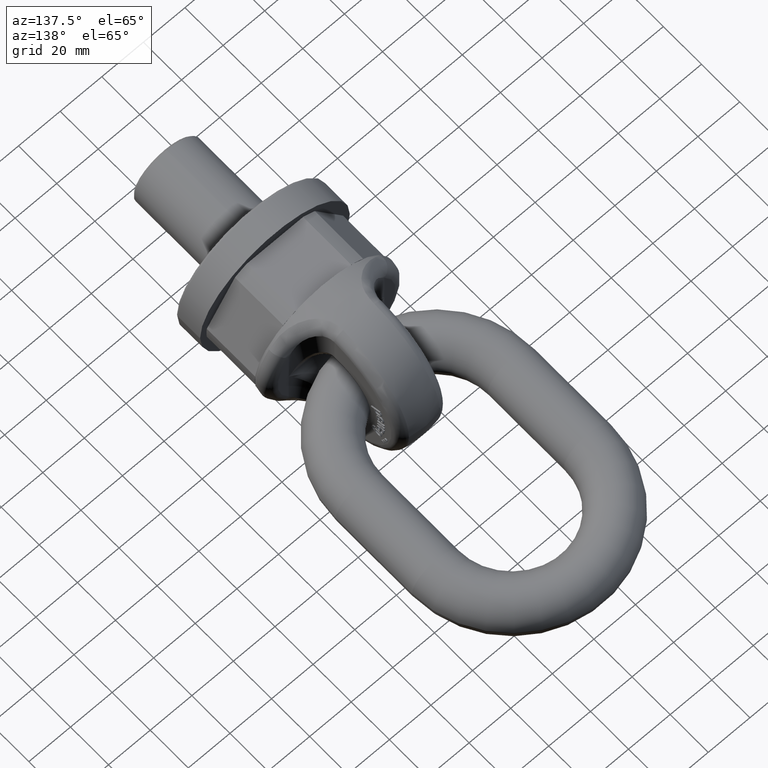
[diagram: clean part render]
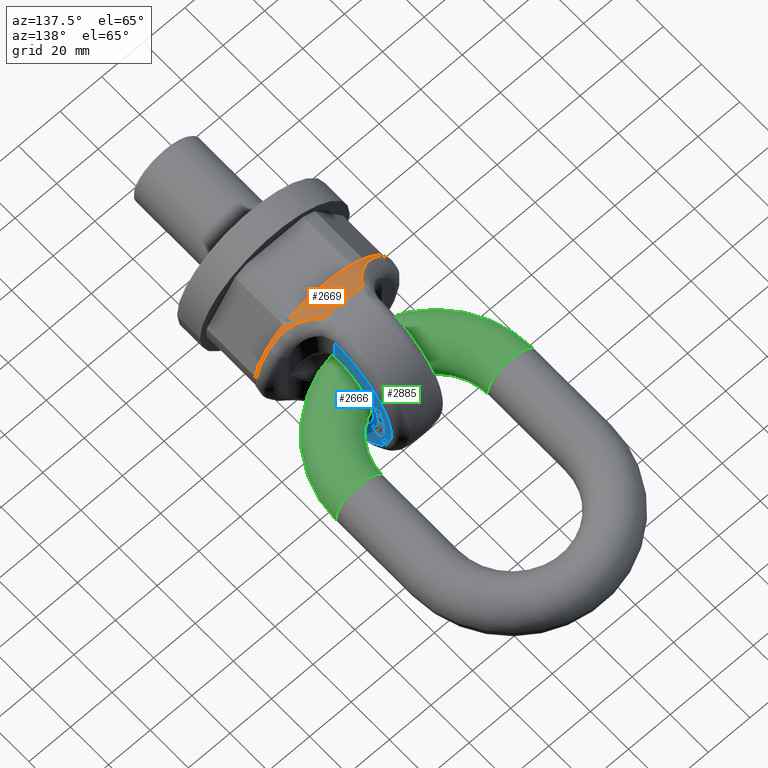
[diagram: same view with three faces highlighted in distinct colors, each labeled with its STEP entity id]
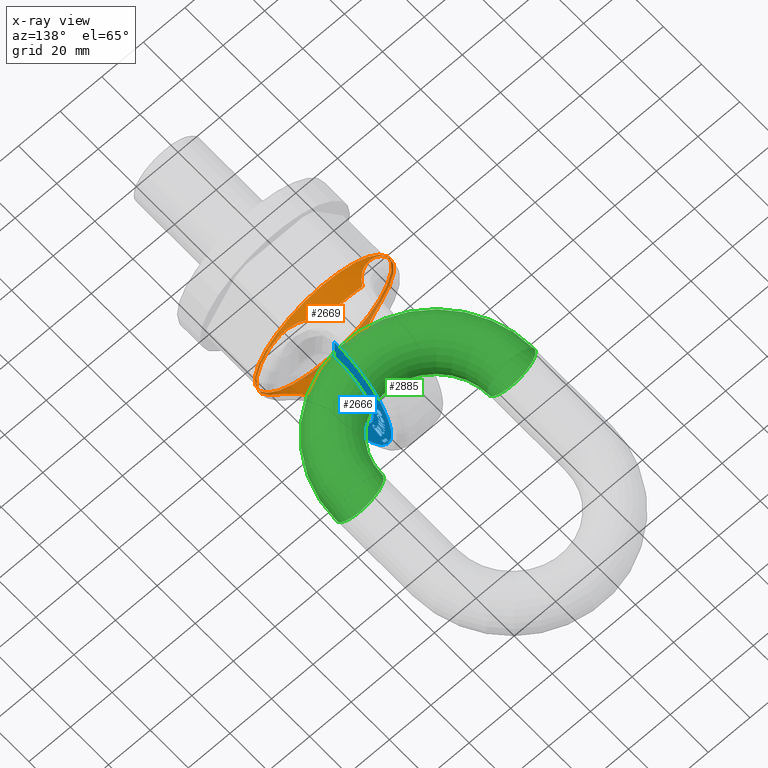
[diagram: x-ray of the same camera — body ghosted, the three highlighted faces saturated]
A machine part, auxiliary view with three faces highlighted in distinct colors.
The next image is the same camera in x-ray (body ghosted, the three faces saturated) — at least one of them is partly hidden behind the body in this view.
Their STEP definitions:

[orange] entity #2669 — the highlighted conical surface has half-angle 12.365 deg.
#357=B_SPLINE_CURVE_WITH_KNOTS('',3,(#7016,#7017,#7018,#7019,#7020,#7021),
 .UNSPECIFIED.,.F.,.F.,(4,2,4),(0.,0.5,1.),.UNSPECIFIED.);
#358=B_SPLINE_CURVE_WITH_KNOTS('',3,(#7026,#7027,#7028,#7029,#7030,#7031,
#7032,#7033),.UNSPECIFIED.,.F.,.F.,(4,2,2,4),(0.,0.5,0.75,1.),
 .UNSPECIFIED.);
#359=B_SPLINE_CURVE_WITH_KNOTS('',3,(#7037,#7038,#7039,#7040,#7041,#7042),
 .UNSPECIFIED.,.F.,.F.,(4,2,4),(0.,0.5,1.),.UNSPECIFIED.);
#360=B_SPLINE_CURVE_WITH_KNOTS('',3,(#7046,#7047,#7048,#7049,#7050,#7051,
#7052,#7053),.UNSPECIFIED.,.F.,.F.,(4,2,2,4),(0.,0.5,0.75,1.),
 .UNSPECIFIED.);
#1795=CONICAL_SURFACE('',#5657,32.9089653438087,12.3645591090466);
#2669=ADVANCED_FACE('',(#3016,#3017),#1795,.T.);
#3016=FACE_BOUND('',#3104,.T.);
#3017=FACE_BOUND('',#3105,.T.);
#3104=EDGE_LOOP('',(#3521));
#3105=EDGE_LOOP('',(#3522,#3523,#3524,#3525,#3526,#3527,#3528,#3529));
#3521=ORIENTED_EDGE('',*,*,#5066,.F.);
#3522=ORIENTED_EDGE('',*,*,#5067,.T.);
#3523=ORIENTED_EDGE('',*,*,#5068,.T.);
#3524=ORIENTED_EDGE('',*,*,#5069,.T.);
#3525=ORIENTED_EDGE('',*,*,#5070,.T.);
#3526=ORIENTED_EDGE('',*,*,#5071,.T.);
#3527=ORIENTED_EDGE('',*,*,#5072,.T.);
#3528=ORIENTED_EDGE('',*,*,#5073,.T.);
#3529=ORIENTED_EDGE('',*,*,#5074,.T.);
#4653=VERTEX_POINT('',#7015);
#4654=VERTEX_POINT('',#7022);
#4655=VERTEX_POINT('',#7023);
#4656=VERTEX_POINT('',#7025);
#4657=VERTEX_POINT('',#7034);
#4658=VERTEX_POINT('',#7036);
#4659=VERTEX_POINT('',#7043);
#4660=VERTEX_POINT('',#7045);
#4661=VERTEX_POINT('',#7054);
#5066=EDGE_CURVE('',#4653,#4653,#5561,.T.);
#5067=EDGE_CURVE('',#4654,#4655,#357,.T.);
#5068=EDGE_CURVE('',#4655,#4656,#5562,.T.);
#5069=EDGE_CURVE('',#4656,#4657,#358,.T.);
#5070=EDGE_CURVE('',#4657,#4658,#5563,.T.);
#5071=EDGE_CURVE('',#4658,#4659,#359,.T.);
#5072=EDGE_CURVE('',#4659,#4660,#5564,.T.);
#5073=EDGE_CURVE('',#4660,#4661,#360,.T.);
#5074=EDGE_CURVE('',#4661,#4654,#5565,.T.);
#5561=CIRCLE('',#5652,32.9089653438087);
#5562=CIRCLE('',#5653,35.1649770557389);
#5563=CIRCLE('',#5654,33.1126923608536);
#5564=CIRCLE('',#5655,35.1649770557389);
#5565=CIRCLE('',#5656,33.1126923608536);
#5652=AXIS2_PLACEMENT_3D('',#7014,#5967,#5968);
#5653=AXIS2_PLACEMENT_3D('',#7024,#5969,#5970);
#5654=AXIS2_PLACEMENT_3D('',#7035,#5971,#5972);
#5655=AXIS2_PLACEMENT_3D('',#7044,#5973,#5974);
#5656=AXIS2_PLACEMENT_3D('',#7055,#5975,#5976);
#5657=AXIS2_PLACEMENT_3D('',#7056,#5977,#5978);
#5967=DIRECTION('',(0.,-1.,0.));
#5968=DIRECTION('',(0.,0.,-1.));
#5969=DIRECTION('',(0.,-1.,0.));
#5970=DIRECTION('',(0.,0.,-1.));
#5971=DIRECTION('',(0.,-1.,0.));
#5972=DIRECTION('',(0.,0.,-1.));
#5973=DIRECTION('',(0.,-1.,0.));
#5974=DIRECTION('',(0.,0.,-1.));
#5975=DIRECTION('',(0.,-1.,0.));
#5976=DIRECTION('',(-2.34291072916505E-15,0.,1.));
#5977=DIRECTION('',(0.,1.,0.));
#5978=DIRECTION('',(0.,1.37608289502775E-16,1.));
#7014=CARTESIAN_POINT('',(0.,38.,0.));
#7015=CARTESIAN_POINT('',(0.,38.,-32.9089653438087));
#7016=CARTESIAN_POINT('',(-26.9793789246754,38.9293442225551,-19.1980079233058));
#7017=CARTESIAN_POINT('',(-24.4615994059767,38.9293442225551,-22.7362983519338));
#7018=CARTESIAN_POINT('',(-21.3056991008732,39.3443178789869,-25.7919690789317));
#7019=CARTESIAN_POINT('',(-14.7601741336095,42.2178728566048,-30.7168430122548));
#7020=CARTESIAN_POINT('',(-11.4740973738557,44.6917908879162,-32.488631803824));
#7021=CARTESIAN_POINT('',(-9.43421952201463,48.2912784023965,-33.8758190062038));
#7022=CARTESIAN_POINT('',(-26.9793789246754,38.9293442225551,-19.1980079233058));
#7023=CARTESIAN_POINT('',(-9.43421952201467,48.2912784023966,-33.8758190062038));
#7024=CARTESIAN_POINT('',(0.,48.2912784023966,0.));
#7025=CARTESIAN_POINT('',(9.43421952201475,48.2912784023966,-33.8758190062038));
#7026=CARTESIAN_POINT('',(9.43421952201475,48.2912784023966,-33.8758190062038));
#7027=CARTESIAN_POINT('',(11.4780903010666,44.6847451270003,-32.4859164757851));
#7028=CARTESIAN_POINT('',(14.8099975668333,42.1909204605537,-30.6825569646057));
#7029=CARTESIAN_POINT('',(19.6824249761623,40.059522002684,-27.0117062959337));
#7030=CARTESIAN_POINT('',(21.3170205668032,39.5929177897052,-25.6168147898478));
#7031=CARTESIAN_POINT('',(24.324543164208,39.0327559955338,-22.6008911952197));
#7032=CARTESIAN_POINT('',(25.7194499894477,38.9293442225551,-20.9686135141289));
#7033=CARTESIAN_POINT('',(26.9793789246754,38.9293442225551,-19.1980079233058));
#7034=CARTESIAN_POINT('',(26.9793789246754,38.9293442225551,-19.1980079233058));
#7035=CARTESIAN_POINT('',(0.,38.9293442225551,0.));
#7036=CARTESIAN_POINT('',(26.9793789246754,38.9293442225551,19.1980079233058));
#7037=CARTESIAN_POINT('',(26.9793789246754,38.9293442225551,19.1980079233058));
#7038=CARTESIAN_POINT('',(24.4615994059768,38.9293442225551,22.7362983519338));
#7039=CARTESIAN_POINT('',(21.3056991008732,39.3443178789869,25.7919690789316));
#7040=CARTESIAN_POINT('',(14.7601741336096,42.2178728566048,30.7168430122548));
#7041=CARTESIAN_POINT('',(11.4740973738557,44.6917908879162,32.488631803824));
#7042=CARTESIAN_POINT('',(9.43421952201471,48.2912784023965,33.8758190062038));
#7043=CARTESIAN_POINT('',(9.43421952201475,48.2912784023966,33.8758190062038));
#7044=CARTESIAN_POINT('',(0.,48.2912784023966,0.));
#7045=CARTESIAN_POINT('',(-9.43421952201483,48.2912784023966,33.8758190062038));
#7046=CARTESIAN_POINT('',(-9.43421952201483,48.2912784023966,33.8758190062038));
#7047=CARTESIAN_POINT('',(-11.4780903010667,44.6847451270004,32.4859164757851));
#7048=CARTESIAN_POINT('',(-14.8099975668334,42.1909204605537,30.6825569646057));
#7049=CARTESIAN_POINT('',(-19.6824249761624,40.059522002684,27.0117062959337));
#7050=CARTESIAN_POINT('',(-21.3170205668033,39.5929177897052,25.6168147898477));
#7051=CARTESIAN_POINT('',(-24.324543164208,39.0327559955338,22.6008911952196));
#7052=CARTESIAN_POINT('',(-25.7194499894477,38.9293442225551,20.9686135141289));
#7053=CARTESIAN_POINT('',(-26.9793789246754,38.9293442225551,19.1980079233057));
#7054=CARTESIAN_POINT('',(-26.9793789246754,38.9293442225551,19.1980079233057));
#7055=CARTESIAN_POINT('',(0.,38.9293442225551,0.));
#7056=CARTESIAN_POINT('',(0.,38.,0.));

[blue] entity #2666 — the highlighted planar face has unit normal (1, -0, 0).
#316=B_SPLINE_CURVE_WITH_KNOTS('',3,(#6668,#6669,#6670,#6671,#6672,#6673),
 .UNSPECIFIED.,.F.,.F.,(4,2,4),(0.,0.670501232539034,1.),.UNSPECIFIED.);
#317=B_SPLINE_CURVE_WITH_KNOTS('',3,(#6675,#6676,#6677,#6678),
 .UNSPECIFIED.,.F.,.F.,(4,4),(0.,1.),.UNSPECIFIED.);
#318=B_SPLINE_CURVE_WITH_KNOTS('',3,(#6680,#6681,#6682,#6683,#6684,#6685),
 .UNSPECIFIED.,.F.,.F.,(4,2,4),(0.,0.470198675496688,1.),.UNSPECIFIED.);
#319=B_SPLINE_CURVE_WITH_KNOTS('',3,(#6687,#6688,#6689,#6690),
 .UNSPECIFIED.,.F.,.F.,(4,4),(0.,1.),.UNSPECIFIED.);
#320=B_SPLINE_CURVE_WITH_KNOTS('',3,(#6694,#6695,#6696,#6697),
 .UNSPECIFIED.,.F.,.F.,(4,4),(0.,1.),.UNSPECIFIED.);
#321=B_SPLINE_CURVE_WITH_KNOTS('',3,(#6699,#6700,#6701,#6702,#6703,#6704),
 .UNSPECIFIED.,.F.,.F.,(4,2,4),(0.,0.44419642857143,1.),.UNSPECIFIED.);
#322=B_SPLINE_CURVE_WITH_KNOTS('',3,(#6706,#6707,#6708,#6709,#6710,#6711),
 .UNSPECIFIED.,.F.,.F.,(4,2,4),(0.,0.5,1.),.UNSPECIFIED.);
#323=B_SPLINE_CURVE_WITH_KNOTS('',3,(#6713,#6714,#6715,#6716,#6717,#6718,
#6719,#6720,#6721,#6722,#6723,#6724,#6725,#6726),.UNSPECIFIED.,.F.,.F.,
(4,2,2,2,2,2,4),(0.,0.149537296690973,0.323681996634887,0.4978266965788,
0.672812675266407,0.847798653954011,1.),.UNSPECIFIED.);
#324=B_SPLINE_CURVE_WITH_KNOTS('',3,(#6731,#6732,#6733,#6734),
 .UNSPECIFIED.,.F.,.F.,(4,4),(0.,1.),.UNSPECIFIED.);
#325=B_SPLINE_CURVE_WITH_KNOTS('',3,(#6739,#6740,#6741,#6742),
 .UNSPECIFIED.,.F.,.F.,(4,4),(0.,1.),.UNSPECIFIED.);
#326=B_SPLINE_CURVE_WITH_KNOTS('',3,(#6744,#6745,#6746,#6747,#6748,#6749),
 .UNSPECIFIED.,.F.,.F.,(4,2,4),(0.,0.565320665083133,1.),.UNSPECIFIED.);
#327=B_SPLINE_CURVE_WITH_KNOTS('',3,(#6751,#6752,#6753,#6754),
 .UNSPECIFIED.,.F.,.F.,(4,4),(0.,1.),.UNSPECIFIED.);
#328=B_SPLINE_CURVE_WITH_KNOTS('',3,(#6758,#6759,#6760,#6761),
 .UNSPECIFIED.,.F.,.F.,(4,4),(0.,1.),.UNSPECIFIED.);
#329=B_SPLINE_CURVE_WITH_KNOTS('',3,(#6763,#6764,#6765,#6766,#6767,#6768),
 .UNSPECIFIED.,.F.,.F.,(4,2,4),(0.,0.429530201342281,1.),.UNSPECIFIED.);
#330=B_SPLINE_CURVE_WITH_KNOTS('',3,(#6770,#6771,#6772,#6773,#6774,#6775,
#6776,#6777,#6778,#6779,#6780,#6781),.UNSPECIFIED.,.F.,.F.,(4,2,2,2,2,4),
(0.,0.253866185683644,0.504362466247593,0.754858746811534,0.877429373405767,
1.),.UNSPECIFIED.);
#331=B_SPLINE_CURVE_WITH_KNOTS('',3,(#6805,#6806,#6807,#6808),
 .UNSPECIFIED.,.F.,.F.,(4,4),(0.,1.),.UNSPECIFIED.);
#332=B_SPLINE_CURVE_WITH_KNOTS('',3,(#6810,#6811,#6812,#6813),
 .UNSPECIFIED.,.F.,.F.,(4,4),(0.,1.),.UNSPECIFIED.);
#333=B_SPLINE_CURVE_WITH_KNOTS('',3,(#6835,#6836,#6837,#6838),
 .UNSPECIFIED.,.F.,.F.,(4,4),(0.,1.),.UNSPECIFIED.);
#334=B_SPLINE_CURVE_WITH_KNOTS('',3,(#6843,#6844,#6845,#6846),
 .UNSPECIFIED.,.F.,.F.,(4,4),(0.,1.),.UNSPECIFIED.);
#335=B_SPLINE_CURVE_WITH_KNOTS('',3,(#6851,#6852,#6853,#6854),
 .UNSPECIFIED.,.F.,.F.,(4,4),(0.,1.),.UNSPECIFIED.);
#336=B_SPLINE_CURVE_WITH_KNOTS('',3,(#6856,#6857,#6858,#6859,#6860,#6861,
#6862,#6863,#6864,#6865),.UNSPECIFIED.,.F.,.F.,(4,2,2,2,4),(0.,0.296954694318533,
0.533565653962711,0.771641518085909,1.),.UNSPECIFIED.);
#337=B_SPLINE_CURVE_WITH_KNOTS('',3,(#6867,#6868,#6869,#6870),
 .UNSPECIFIED.,.F.,.F.,(4,4),(0.,1.),.UNSPECIFIED.);
#338=B_SPLINE_CURVE_WITH_KNOTS('',3,(#6874,#6875,#6876,#6877),
 .UNSPECIFIED.,.F.,.F.,(4,4),(0.,1.),.UNSPECIFIED.);
#339=B_SPLINE_CURVE_WITH_KNOTS('',3,(#6879,#6880,#6881,#6882),
 .UNSPECIFIED.,.F.,.F.,(4,4),(0.,1.),.UNSPECIFIED.);
#340=B_SPLINE_CURVE_WITH_KNOTS('',3,(#6884,#6885,#6886,#6887),
 .UNSPECIFIED.,.F.,.F.,(4,4),(0.,1.),.UNSPECIFIED.);
#341=B_SPLINE_CURVE_WITH_KNOTS('',3,(#6889,#6890,#6891,#6892),
 .UNSPECIFIED.,.F.,.F.,(4,4),(0.,1.),.UNSPECIFIED.);
#342=B_SPLINE_CURVE_WITH_KNOTS('',3,(#6894,#6895,#6896,#6897,#6898,#6899),
 .UNSPECIFIED.,.F.,.F.,(4,2,4),(0.,0.440217391304352,1.),.UNSPECIFIED.);
#343=B_SPLINE_CURVE_WITH_KNOTS('',3,(#6901,#6902,#6903,#6904),
 .UNSPECIFIED.,.F.,.F.,(4,4),(0.,1.),.UNSPECIFIED.);
#344=B_SPLINE_CURVE_WITH_KNOTS('',3,(#6908,#6909,#6910,#6911),
 .UNSPECIFIED.,.F.,.F.,(4,4),(0.,1.),.UNSPECIFIED.);
#345=B_SPLINE_CURVE_WITH_KNOTS('',3,(#6913,#6914,#6915,#6916,#6917,#6918),
 .UNSPECIFIED.,.F.,.F.,(4,2,4),(0.,0.523876404494382,1.),.UNSPECIFIED.);
#346=B_SPLINE_CURVE_WITH_KNOTS('',3,(#6920,#6921,#6922,#6923),
 .UNSPECIFIED.,.F.,.F.,(4,4),(0.,1.),.UNSPECIFIED.);
#347=B_SPLINE_CURVE_WITH_KNOTS('',3,(#6925,#6926,#6927,#6928,#6929,#6930,
#6931,#6932),.UNSPECIFIED.,.F.,.F.,(4,2,2,4),(0.,0.269230769230762,0.527644230769231,
1.),.UNSPECIFIED.);
#348=B_SPLINE_CURVE_WITH_KNOTS('',3,(#6936,#6937,#6938,#6939),
 .UNSPECIFIED.,.F.,.F.,(4,4),(0.,1.),.UNSPECIFIED.);
#349=B_SPLINE_CURVE_WITH_KNOTS('',3,(#6941,#6942,#6943,#6944),
 .UNSPECIFIED.,.F.,.F.,(4,4),(0.,1.),.UNSPECIFIED.);
#350=B_SPLINE_CURVE_WITH_KNOTS('',3,(#6946,#6947,#6948,#6949,#6950,#6951,
#6952,#6953,#6954,#6955),.UNSPECIFIED.,.F.,.F.,(4,2,2,2,4),(0.,0.245990994549329,
0.50792584985649,0.769860705163649,1.),.UNSPECIFIED.);
#2065=LINE('',#6665,#2321);
#2066=LINE('',#6692,#2322);
#2067=LINE('',#6728,#2323);
#2068=LINE('',#6730,#2324);
#2069=LINE('',#6737,#2325);
#2070=LINE('',#6756,#2326);
#2071=LINE('',#6788,#2327);
#2072=LINE('',#6793,#2328);
#2073=LINE('',#6796,#2329);
#2074=LINE('',#6799,#2330);
#2075=LINE('',#6801,#2331);
#2076=LINE('',#6803,#2332);
#2077=LINE('',#6815,#2333);
#2078=LINE('',#6817,#2334);
#2079=LINE('',#6819,#2335);
#2080=LINE('',#6821,#2336);
#2081=LINE('',#6823,#2337);
#2082=LINE('',#6825,#2338);
#2083=LINE('',#6827,#2339);
#2084=LINE('',#6829,#2340);
#2085=LINE('',#6831,#2341);
#2086=LINE('',#6833,#2342);
#2087=LINE('',#6840,#2343);
#2088=LINE('',#6842,#2344);
#2089=LINE('',#6849,#2345);
#2090=LINE('',#6872,#2346);
#2091=LINE('',#6906,#2347);
#2092=LINE('',#6933,#2348);
#2093=LINE('',#6957,#2349);
#2094=LINE('',#6959,#2350);
#2095=LINE('',#6961,#2351);
#2096=LINE('',#6963,#2352);
#2097=LINE('',#6965,#2353);
#2098=LINE('',#6967,#2354);
#2321=VECTOR('',#5915,1.);
#2322=VECTOR('',#5916,1.);
#2323=VECTOR('',#5917,1.);
#2324=VECTOR('',#5918,1.);
#2325=VECTOR('',#5919,1.);
#2326=VECTOR('',#5920,1.);
#2327=VECTOR('',#5927,1.);
#2328=VECTOR('',#5930,1.);
#2329=VECTOR('',#5933,1.);
#2330=VECTOR('',#5934,1.);
#2331=VECTOR('',#5935,1.);
#2332=VECTOR('',#5936,1.);
#2333=VECTOR('',#5937,1.);
#2334=VECTOR('',#5938,1.);
#2335=VECTOR('',#5939,1.);
#2336=VECTOR('',#5940,1.);
#2337=VECTOR('',#5941,1.);
#2338=VECTOR('',#5942,1.);
#2339=VECTOR('',#5943,1.);
#2340=VECTOR('',#5944,1.);
#2341=VECTOR('',#5945,1.);
#2342=VECTOR('',#5946,1.);
#2343=VECTOR('',#5947,1.);
#2344=VECTOR('',#5948,1.);
#2345=VECTOR('',#5949,1.);
#2346=VECTOR('',#5950,1.);
#2347=VECTOR('',#5951,1.);
#2348=VECTOR('',#5952,1.);
#2349=VECTOR('',#5953,1.);
#2350=VECTOR('',#5954,1.);
#2351=VECTOR('',#5955,1.);
#2352=VECTOR('',#5956,1.);
#2353=VECTOR('',#5957,1.);
#2354=VECTOR('',#5958,1.);
#2666=ADVANCED_FACE('',(#3007,#3008,#3009,#3010,#3011,#3012,#3013,#3014,
#3015),#2898,.T.);
#2898=PLANE('',#5649);
#3007=FACE_BOUND('',#3093,.T.);
#3008=FACE_BOUND('',#3094,.T.);
#3009=FACE_BOUND('',#3095,.T.);
#3010=FACE_BOUND('',#3096,.T.);
#3011=FACE_BOUND('',#3097,.T.);
#3012=FACE_BOUND('',#3098,.T.);
#3013=FACE_BOUND('',#3099,.T.);
#3014=FACE_BOUND('',#3100,.T.);
#3015=FACE_BOUND('',#3101,.T.);
#3093=EDGE_LOOP('',(#3437,#3438,#3439,#3440,#3441,#3442,#3443,#3444,#3445,
#3446,#3447,#3448));
#3094=EDGE_LOOP('',(#3449,#3450,#3451,#3452,#3453,#3454,#3455,#3456,#3457));
#3095=EDGE_LOOP('',(#3458));
#3096=EDGE_LOOP('',(#3459));
#3097=EDGE_LOOP('',(#3460));
#3098=EDGE_LOOP('',(#3461,#3462,#3463,#3464));
#3099=EDGE_LOOP('',(#3465,#3466,#3467,#3468,#3469,#3470,#3471,#3472,#3473,
#3474,#3475,#3476,#3477,#3478,#3479,#3480,#3481,#3482,#3483));
#3100=EDGE_LOOP('',(#3484,#3485,#3486,#3487,#3488,#3489,#3490,#3491,#3492,
#3493,#3494,#3495,#3496,#3497,#3498,#3499,#3500));
#3101=EDGE_LOOP('',(#3501,#3502,#3503,#3504,#3505,#3506,#3507,#3508,#3509,
#3510));
#3437=ORIENTED_EDGE('',*,*,#4984,.T.);
#3438=ORIENTED_EDGE('',*,*,#4985,.T.);
#3439=ORIENTED_EDGE('',*,*,#4986,.T.);
#3440=ORIENTED_EDGE('',*,*,#4987,.T.);
#3441=ORIENTED_EDGE('',*,*,#4988,.T.);
#3442=ORIENTED_EDGE('',*,*,#4989,.T.);
#3443=ORIENTED_EDGE('',*,*,#4990,.T.);
#3444=ORIENTED_EDGE('',*,*,#4991,.T.);
#3445=ORIENTED_EDGE('',*,*,#4992,.T.);
#3446=ORIENTED_EDGE('',*,*,#4993,.T.);
#3447=ORIENTED_EDGE('',*,*,#4994,.T.);
#3448=ORIENTED_EDGE('',*,*,#4995,.T.);
#3449=ORIENTED_EDGE('',*,*,#4996,.T.);
#3450=ORIENTED_EDGE('',*,*,#4997,.T.);
#3451=ORIENTED_EDGE('',*,*,#4998,.T.);
#3452=ORIENTED_EDGE('',*,*,#4999,.T.);
#3453=ORIENTED_EDGE('',*,*,#5000,.T.);
#3454=ORIENTED_EDGE('',*,*,#5001,.T.);
#3455=ORIENTED_EDGE('',*,*,#5002,.T.);
#3456=ORIENTED_EDGE('',*,*,#5003,.T.);
#3457=ORIENTED_EDGE('',*,*,#5004,.T.);
#3458=ORIENTED_EDGE('',*,*,#5005,.T.);
#3459=ORIENTED_EDGE('',*,*,#5006,.T.);
#3460=ORIENTED_EDGE('',*,*,#5007,.T.);
#3461=ORIENTED_EDGE('',*,*,#5008,.T.);
#3462=ORIENTED_EDGE('',*,*,#5009,.T.);
#3463=ORIENTED_EDGE('',*,*,#5010,.T.);
#3464=ORIENTED_EDGE('',*,*,#5011,.T.);
#3465=ORIENTED_EDGE('',*,*,#5012,.T.);
#3466=ORIENTED_EDGE('',*,*,#5013,.T.);
#3467=ORIENTED_EDGE('',*,*,#5014,.T.);
#3468=ORIENTED_EDGE('',*,*,#5015,.T.);
#3469=ORIENTED_EDGE('',*,*,#5016,.T.);
#3470=ORIENTED_EDGE('',*,*,#5017,.T.);
#3471=ORIENTED_EDGE('',*,*,#5018,.T.);
#3472=ORIENTED_EDGE('',*,*,#5019,.T.);
#3473=ORIENTED_EDGE('',*,*,#5020,.T.);
#3474=ORIENTED_EDGE('',*,*,#5021,.T.);
#3475=ORIENTED_EDGE('',*,*,#5022,.T.);
#3476=ORIENTED_EDGE('',*,*,#5023,.T.);
#3477=ORIENTED_EDGE('',*,*,#5024,.T.);
#3478=ORIENTED_EDGE('',*,*,#5025,.T.);
#3479=ORIENTED_EDGE('',*,*,#5026,.T.);
#3480=ORIENTED_EDGE('',*,*,#5027,.T.);
#3481=ORIENTED_EDGE('',*,*,#5028,.T.);
#3482=ORIENTED_EDGE('',*,*,#5029,.T.);
#3483=ORIENTED_EDGE('',*,*,#5030,.T.);
#3484=ORIENTED_EDGE('',*,*,#5031,.T.);
#3485=ORIENTED_EDGE('',*,*,#5032,.T.);
#3486=ORIENTED_EDGE('',*,*,#5033,.T.);
#3487=ORIENTED_EDGE('',*,*,#5034,.T.);
#3488=ORIENTED_EDGE('',*,*,#5035,.T.);
#3489=ORIENTED_EDGE('',*,*,#5036,.T.);
#3490=ORIENTED_EDGE('',*,*,#5037,.T.);
#3491=ORIENTED_EDGE('',*,*,#5038,.T.);
#3492=ORIENTED_EDGE('',*,*,#5039,.T.);
#3493=ORIENTED_EDGE('',*,*,#5040,.T.);
#3494=ORIENTED_EDGE('',*,*,#5041,.T.);
#3495=ORIENTED_EDGE('',*,*,#5042,.T.);
#3496=ORIENTED_EDGE('',*,*,#5043,.T.);
#3497=ORIENTED_EDGE('',*,*,#5044,.T.);
#3498=ORIENTED_EDGE('',*,*,#5045,.T.);
#3499=ORIENTED_EDGE('',*,*,#5046,.T.);
#3500=ORIENTED_EDGE('',*,*,#5047,.T.);
#3501=ORIENTED_EDGE('',*,*,#5048,.T.);
#3502=ORIENTED_EDGE('',*,*,#5049,.T.);
#3503=ORIENTED_EDGE('',*,*,#5050,.T.);
#3504=ORIENTED_EDGE('',*,*,#5051,.T.);
#3505=ORIENTED_EDGE('',*,*,#5052,.T.);
#3506=ORIENTED_EDGE('',*,*,#5053,.T.);
#3507=ORIENTED_EDGE('',*,*,#5054,.T.);
#3508=ORIENTED_EDGE('',*,*,#5055,.T.);
#3509=ORIENTED_EDGE('',*,*,#5056,.T.);
#3510=ORIENTED_EDGE('',*,*,#5057,.T.);
#4574=VERTEX_POINT('',#6666);
#4575=VERTEX_POINT('',#6667);
#4576=VERTEX_POINT('',#6674);
#4577=VERTEX_POINT('',#6679);
#4578=VERTEX_POINT('',#6686);
#4579=VERTEX_POINT('',#6691);
#4580=VERTEX_POINT('',#6693);
#4581=VERTEX_POINT('',#6698);
#4582=VERTEX_POINT('',#6705);
#4583=VERTEX_POINT('',#6712);
#4584=VERTEX_POINT('',#6727);
#4585=VERTEX_POINT('',#6729);
#4586=VERTEX_POINT('',#6735);
#4587=VERTEX_POINT('',#6736);
#4588=VERTEX_POINT('',#6738);
#4589=VERTEX_POINT('',#6743);
#4590=VERTEX_POINT('',#6750);
#4591=VERTEX_POINT('',#6755);
#4592=VERTEX_POINT('',#6757);
#4593=VERTEX_POINT('',#6762);
#4594=VERTEX_POINT('',#6769);
#4595=VERTEX_POINT('',#6783);
#4596=VERTEX_POINT('',#6785);
#4597=VERTEX_POINT('',#6787);
#4598=VERTEX_POINT('',#6789);
#4599=VERTEX_POINT('',#6790);
#4600=VERTEX_POINT('',#6792);
#4601=VERTEX_POINT('',#6794);
#4602=VERTEX_POINT('',#6797);
#4603=VERTEX_POINT('',#6798);
#4604=VERTEX_POINT('',#6800);
#4605=VERTEX_POINT('',#6802);
#4606=VERTEX_POINT('',#6804);
#4607=VERTEX_POINT('',#6809);
#4608=VERTEX_POINT('',#6814);
#4609=VERTEX_POINT('',#6816);
#4610=VERTEX_POINT('',#6818);
#4611=VERTEX_POINT('',#6820);
#4612=VERTEX_POINT('',#6822);
#4613=VERTEX_POINT('',#6824);
#4614=VERTEX_POINT('',#6826);
#4615=VERTEX_POINT('',#6828);
#4616=VERTEX_POINT('',#6830);
#4617=VERTEX_POINT('',#6832);
#4618=VERTEX_POINT('',#6834);
#4619=VERTEX_POINT('',#6839);
#4620=VERTEX_POINT('',#6841);
#4621=VERTEX_POINT('',#6847);
#4622=VERTEX_POINT('',#6848);
#4623=VERTEX_POINT('',#6850);
#4624=VERTEX_POINT('',#6855);
#4625=VERTEX_POINT('',#6866);
#4626=VERTEX_POINT('',#6871);
#4627=VERTEX_POINT('',#6873);
#4628=VERTEX_POINT('',#6878);
#4629=VERTEX_POINT('',#6883);
#4630=VERTEX_POINT('',#6888);
#4631=VERTEX_POINT('',#6893);
#4632=VERTEX_POINT('',#6900);
#4633=VERTEX_POINT('',#6905);
#4634=VERTEX_POINT('',#6907);
#4635=VERTEX_POINT('',#6912);
#4636=VERTEX_POINT('',#6919);
#4637=VERTEX_POINT('',#6924);
#4638=VERTEX_POINT('',#6934);
#4639=VERTEX_POINT('',#6935);
#4640=VERTEX_POINT('',#6940);
#4641=VERTEX_POINT('',#6945);
#4642=VERTEX_POINT('',#6956);
#4643=VERTEX_POINT('',#6958);
#4644=VERTEX_POINT('',#6960);
#4645=VERTEX_POINT('',#6962);
#4646=VERTEX_POINT('',#6964);
#4647=VERTEX_POINT('',#6966);
#4984=EDGE_CURVE('',#4574,#4575,#2065,.T.);
#4985=EDGE_CURVE('',#4575,#4576,#316,.T.);
#4986=EDGE_CURVE('',#4576,#4577,#317,.T.);
#4987=EDGE_CURVE('',#4577,#4578,#318,.T.);
#4988=EDGE_CURVE('',#4578,#4579,#319,.T.);
#4989=EDGE_CURVE('',#4579,#4580,#2066,.T.);
#4990=EDGE_CURVE('',#4580,#4581,#320,.T.);
#4991=EDGE_CURVE('',#4581,#4582,#321,.T.);
#4992=EDGE_CURVE('',#4582,#4583,#322,.T.);
#4993=EDGE_CURVE('',#4583,#4584,#323,.T.);
#4994=EDGE_CURVE('',#4584,#4585,#2067,.T.);
#4995=EDGE_CURVE('',#4585,#4574,#2068,.T.);
#4996=EDGE_CURVE('',#4586,#4587,#324,.T.);
#4997=EDGE_CURVE('',#4587,#4588,#2069,.T.);
#4998=EDGE_CURVE('',#4588,#4589,#325,.T.);
#4999=EDGE_CURVE('',#4589,#4590,#326,.T.);
#5000=EDGE_CURVE('',#4590,#4591,#327,.T.);
#5001=EDGE_CURVE('',#4591,#4592,#2070,.T.);
#5002=EDGE_CURVE('',#4592,#4593,#328,.T.);
#5003=EDGE_CURVE('',#4593,#4594,#329,.T.);
#5004=EDGE_CURVE('',#4594,#4586,#330,.T.);
#5005=EDGE_CURVE('',#4595,#4595,#5556,.T.);
#5006=EDGE_CURVE('',#4596,#4596,#5557,.T.);
#5007=EDGE_CURVE('',#4597,#4597,#5558,.T.);
#5008=EDGE_CURVE('',#4598,#4599,#2071,.T.);
#5009=EDGE_CURVE('',#4599,#4600,#5559,.T.);
#5010=EDGE_CURVE('',#4600,#4601,#2072,.T.);
#5011=EDGE_CURVE('',#4601,#4598,#5560,.T.);
#5012=EDGE_CURVE('',#4602,#4603,#2073,.T.);
#5013=EDGE_CURVE('',#4603,#4604,#2074,.T.);
#5014=EDGE_CURVE('',#4604,#4605,#2075,.T.);
#5015=EDGE_CURVE('',#4605,#4606,#2076,.T.);
#5016=EDGE_CURVE('',#4606,#4607,#331,.T.);
#5017=EDGE_CURVE('',#4607,#4608,#332,.T.);
#5018=EDGE_CURVE('',#4608,#4609,#2077,.T.);
#5019=EDGE_CURVE('',#4609,#4610,#2078,.T.);
#5020=EDGE_CURVE('',#4610,#4611,#2079,.T.);
#5021=EDGE_CURVE('',#4611,#4612,#2080,.T.);
#5022=EDGE_CURVE('',#4612,#4613,#2081,.T.);
#5023=EDGE_CURVE('',#4613,#4614,#2082,.T.);
#5024=EDGE_CURVE('',#4614,#4615,#2083,.T.);
#5025=EDGE_CURVE('',#4615,#4616,#2084,.T.);
#5026=EDGE_CURVE('',#4616,#4617,#2085,.T.);
#5027=EDGE_CURVE('',#4617,#4618,#2086,.T.);
#5028=EDGE_CURVE('',#4618,#4619,#333,.T.);
#5029=EDGE_CURVE('',#4619,#4620,#2087,.T.);
#5030=EDGE_CURVE('',#4620,#4602,#2088,.T.);
#5031=EDGE_CURVE('',#4621,#4622,#334,.T.);
#5032=EDGE_CURVE('',#4622,#4623,#2089,.T.);
#5033=EDGE_CURVE('',#4623,#4624,#335,.T.);
#5034=EDGE_CURVE('',#4624,#4625,#336,.T.);
#5035=EDGE_CURVE('',#4625,#4626,#337,.T.);
#5036=EDGE_CURVE('',#4626,#4627,#2090,.T.);
#5037=EDGE_CURVE('',#4627,#4628,#338,.T.);
#5038=EDGE_CURVE('',#4628,#4629,#339,.T.);
#5039=EDGE_CURVE('',#4629,#4630,#340,.T.);
#5040=EDGE_CURVE('',#4630,#4631,#341,.T.);
#5041=EDGE_CURVE('',#4631,#4632,#342,.T.);
#5042=EDGE_CURVE('',#4632,#4633,#343,.T.);
#5043=EDGE_CURVE('',#4633,#4634,#2091,.T.);
#5044=EDGE_CURVE('',#4634,#4635,#344,.T.);
#5045=EDGE_CURVE('',#4635,#4636,#345,.T.);
#5046=EDGE_CURVE('',#4636,#4637,#346,.T.);
#5047=EDGE_CURVE('',#4637,#4621,#347,.T.);
#5048=EDGE_CURVE('',#4638,#4639,#2092,.T.);
#5049=EDGE_CURVE('',#4639,#4640,#348,.T.);
#5050=EDGE_CURVE('',#4640,#4641,#349,.T.);
#5051=EDGE_CURVE('',#4641,#4642,#350,.T.);
#5052=EDGE_CURVE('',#4642,#4643,#2093,.T.);
#5053=EDGE_CURVE('',#4643,#4644,#2094,.T.);
#5054=EDGE_CURVE('',#4644,#4645,#2095,.T.);
#5055=EDGE_CURVE('',#4645,#4646,#2096,.T.);
#5056=EDGE_CURVE('',#4646,#4647,#2097,.T.);
#5057=EDGE_CURVE('',#4647,#4638,#2098,.T.);
#5556=CIRCLE('',#5644,0.75);
#5557=CIRCLE('',#5645,0.75);
#5558=CIRCLE('',#5646,0.75);
#5559=CIRCLE('',#5647,18.5);
#5560=CIRCLE('',#5648,30.3108891324554);
#5644=AXIS2_PLACEMENT_3D('',#6782,#5921,#5922);
#5645=AXIS2_PLACEMENT_3D('',#6784,#5923,#5924);
#5646=AXIS2_PLACEMENT_3D('',#6786,#5925,#5926);
#5647=AXIS2_PLACEMENT_3D('',#6791,#5928,#5929);
#5648=AXIS2_PLACEMENT_3D('',#6795,#5931,#5932);
#5649=AXIS2_PLACEMENT_3D('',#6968,#5959,#5960);
#5915=DIRECTION('',(-1.22313040340103E-16,-0.368211928977312,-0.929741886417304));
#5916=DIRECTION('',(-1.67292566328452E-16,-0.50361857067801,-0.86392611678791));
#5917=DIRECTION('',(-1.22313040340181E-16,-0.368211928977547,-0.929741886417211));
#5918=DIRECTION('',(3.08842674312843E-16,0.929741886417309,-0.368211928977299));
#5919=DIRECTION('',(-6.67741068713853E-17,-0.201017182047666,0.979587715583253));
#5920=DIRECTION('',(2.70053038008433E-17,0.0812969326694646,-0.996689926074572));
#5921=DIRECTION('',(-1.,3.32181091144495E-16,0.));
#5922=DIRECTION('',(0.,1.,0.));
#5923=DIRECTION('',(-1.,3.32181091144495E-16,0.));
#5924=DIRECTION('',(0.,1.,0.));
#5925=DIRECTION('',(-1.,3.32181091144495E-16,0.));
#5926=DIRECTION('',(0.,1.,0.));
#5927=DIRECTION('',(0.,0.,-1.));
#5928=DIRECTION('',(-1.,3.32181091144495E-16,0.));
#5929=DIRECTION('',(3.75075346157147E-16,1.,0.));
#5930=DIRECTION('',(0.,0.,-1.));
#5931=DIRECTION('',(1.,-3.32181091144495E-16,0.));
#5932=DIRECTION('',(3.43386193997065E-16,1.,0.));
#5933=DIRECTION('',(1.63324825118247E-19,0.000491674058133558,-0.999999879128303));
#5934=DIRECTION('',(-3.16483245596648E-16,-0.952743109206604,0.303777168100787));
#5935=DIRECTION('',(-1.63324825114865E-19,-0.000491674058123377,0.999999879128303));
#5936=DIRECTION('',(3.20791751525258E-16,0.965713461955355,0.259610302950794));
#5937=DIRECTION('',(-1.63324824904716E-19,-0.000491674057490744,0.999999879128303));
#5938=DIRECTION('',(-3.21296361320356E-16,-0.967232542386331,0.253892120690804));
#5939=DIRECTION('',(-1.63324825117463E-19,-0.000491674058131197,0.999999879128303));
#5940=DIRECTION('',(3.17006672328932E-16,0.954318836261025,0.298790158401182));
#5941=DIRECTION('',(1.63324825114865E-19,0.000491674058123377,-0.999999879128303));
#5942=DIRECTION('',(-3.19849843531315E-16,-0.962877936336791,-0.269937177350217));
#5943=DIRECTION('',(3.21866542016294E-16,0.968949017860518,-0.247260592871444));
#5944=DIRECTION('',(3.20251567526313E-16,0.964087288722306,-0.26558557890833));
#5945=DIRECTION('',(1.63324825111352E-19,0.000491674058112801,-0.999999879128303));
#5946=DIRECTION('',(-3.21326536901703E-16,-0.967323383142026,-0.25354579946563));
#5947=DIRECTION('',(1.63324825226721E-19,0.000491674058460109,-0.999999879128303));
#5948=DIRECTION('',(3.18225165797254E-16,0.957986996492914,-0.286811636009571));
#5949=DIRECTION('',(6.64540926409989E-17,0.20005380924013,0.979784911808971));
#5950=DIRECTION('',(-1.84189867667044E-17,-0.0554486310561619,-0.998461541229304));
#5951=DIRECTION('',(1.07185097876795E-16,0.32267067793504,0.946511296076778));
#5952=DIRECTION('',(1.22616681028546E-16,0.369126010773469,-0.929379356436576));
#5953=DIRECTION('',(-1.22616681028804E-16,-0.369126010774248,0.929379356436267));
#5954=DIRECTION('',(-3.08722248708226E-16,-0.929379356436443,-0.369126010773806));
#5955=DIRECTION('',(-1.22616681028659E-16,-0.36912601077381,0.929379356436441));
#5956=DIRECTION('',(3.08722248708226E-16,0.929379356436444,0.369126010773803));
#5957=DIRECTION('',(1.22616681028661E-16,0.369126010773817,-0.929379356436438));
#5958=DIRECTION('',(-3.08722248708228E-16,-0.929379356436447,-0.369126010773795));
#5959=DIRECTION('',(1.,-3.32181091144495E-16,0.));
#5960=DIRECTION('',(3.3133218391157E-16,1.,0.));
#6665=CARTESIAN_POINT('',(11.5,99.3326372212209,36.6960063914935));
#6666=CARTESIAN_POINT('',(11.5,80.8882008048734,-9.87653446905976));
#6667=CARTESIAN_POINT('',(11.5,80.6759044756784,-10.4125866011387));
#6668=CARTESIAN_POINT('',(11.5,80.6759044756784,-10.4125866011387));
#6669=CARTESIAN_POINT('',(11.5,79.7054908413518,-10.0282671664425));
#6670=CARTESIAN_POINT('',(11.5,78.7350772070252,-9.64394773174635));
#6671=CARTESIAN_POINT('',(11.5,77.2877813823004,-9.07076543759774));
#6672=CARTESIAN_POINT('',(11.5,76.9501806325741,-8.88106952940111));
#6673=CARTESIAN_POINT('',(11.5,76.7518613235196,-8.69054057246029));
#6674=CARTESIAN_POINT('',(11.5,76.7518613235196,-8.69054057246029));
#6675=CARTESIAN_POINT('',(11.5,76.7518613235196,-8.69054057246029));
#6676=CARTESIAN_POINT('',(11.5,76.5547312468601,-8.50048259521884));
#6677=CARTESIAN_POINT('',(11.5,76.4401185214033,-8.25491457729882));
#6678=CARTESIAN_POINT('',(11.5,76.4070646987104,-7.95625661861931));
#6679=CARTESIAN_POINT('',(11.5,76.4070646987104,-7.95625661861931));
#6680=CARTESIAN_POINT('',(11.5,76.4070646987104,-7.95625661861931));
#6681=CARTESIAN_POINT('',(11.5,76.3733008678419,-7.65591763028088));
#6682=CARTESIAN_POINT('',(11.5,76.4248237956504,-7.33476155668557));
#6683=CARTESIAN_POINT('',(11.5,76.7142752241691,-6.60389138111968));
#6684=CARTESIAN_POINT('',(11.5,76.9266635907949,-6.31424760057701));
#6685=CARTESIAN_POINT('',(11.5,77.1987985820136,-6.12385705620538));
#6686=CARTESIAN_POINT('',(11.5,77.1987985820136,-6.12385705620538));
#6687=CARTESIAN_POINT('',(11.5,77.1987985820136,-6.12385705620538));
#6688=CARTESIAN_POINT('',(11.5,77.4702235650567,-5.93178548217483));
#6689=CARTESIAN_POINT('',(11.5,77.7981124803502,-5.91325845641908));
#6690=CARTESIAN_POINT('',(11.5,78.1822345439378,-6.06538489931965));
#6691=CARTESIAN_POINT('',(11.5,78.1822345439378,-6.06538489931965));
#6692=CARTESIAN_POINT('',(11.5,101.555374831861,34.0297734243683));
#6693=CARTESIAN_POINT('',(11.5,77.873291325256,-6.59535764211263));
#6694=CARTESIAN_POINT('',(11.5,77.873291325256,-6.59535764211263));
#6695=CARTESIAN_POINT('',(11.5,77.6874696624506,-6.54696256617645));
#6696=CARTESIAN_POINT('',(11.5,77.5240845083874,-6.57044598729701));
#6697=CARTESIAN_POINT('',(11.5,77.3836150872858,-6.66459785551476));
#6698=CARTESIAN_POINT('',(11.5,77.3836150872858,-6.66459785551476));
#6699=CARTESIAN_POINT('',(11.5,77.3836150872858,-6.66459785551476));
#6700=CARTESIAN_POINT('',(11.5,77.2438556743598,-6.76043075339143));
#6701=CARTESIAN_POINT('',(11.5,77.125343537781,-6.92767116862546));
#6702=CARTESIAN_POINT('',(11.5,76.9106510874891,-7.46977355050215));
#6703=CARTESIAN_POINT('',(11.5,76.8840831317034,-7.71402260780806));
#6704=CARTESIAN_POINT('',(11.5,76.9486055941486,-7.90195735275306));
#6705=CARTESIAN_POINT('',(11.5,76.9486055941486,-7.90195735275306));
#6706=CARTESIAN_POINT('',(11.5,76.9486055941486,-7.90195735275306));
#6707=CARTESIAN_POINT('',(11.5,77.0147965132082,-8.0891530274379));
#6708=CARTESIAN_POINT('',(11.5,77.1270471782167,-8.23299707758974));
#6709=CARTESIAN_POINT('',(11.5,77.4493833781501,-8.43344574770585));
#6710=CARTESIAN_POINT('',(11.5,77.6821891746945,-8.54384331675585));
#6711=CARTESIAN_POINT('',(11.5,77.9866326678166,-8.66441411979779));
#6712=CARTESIAN_POINT('',(11.5,77.9866326678166,-8.66441411979779));
#6713=CARTESIAN_POINT('',(11.5,77.9866326678166,-8.66441411979779));
#6714=CARTESIAN_POINT('',(11.5,77.7913816714902,-8.29592076276531));
#6715=CARTESIAN_POINT('',(11.5,77.7711420566068,-7.91974712038061));
#6716=CARTESIAN_POINT('',(11.5,78.0989314226776,-7.09207294805102));
#6717=CARTESIAN_POINT('',(11.5,78.4025173973416,-6.79795139914138));
#6718=CARTESIAN_POINT('',(11.5,79.2631938220792,-6.51448207364791));
#6719=CARTESIAN_POINT('',(11.5,79.7242944219205,-6.54171256502651));
#6720=CARTESIAN_POINT('',(11.5,80.7113573097772,-6.93262571551406));
#6721=CARTESIAN_POINT('',(11.5,81.0722647351496,-7.2267410668308));
#6722=CARTESIAN_POINT('',(11.5,81.5231161707637,-8.0128255027318));
#6723=CARTESIAN_POINT('',(11.5,81.5446522078494,-8.44130666880983));
#6724=CARTESIAN_POINT('',(11.5,81.2005692183189,-9.31012253976398));
#6725=CARTESIAN_POINT('',(11.5,80.9108630897106,-9.57614484904328));
#6726=CARTESIAN_POINT('',(11.5,80.4903224893791,-9.70356180141406));
#6727=CARTESIAN_POINT('',(11.5,80.4903224893791,-9.70356180141406));
#6728=CARTESIAN_POINT('',(11.5,98.9294874393243,36.8556685095778));
#6729=CARTESIAN_POINT('',(11.5,80.4850510229656,-9.71687235096907));
#6730=CARTESIAN_POINT('',(11.5,73.555563583653,-6.97254086055365));
#6731=CARTESIAN_POINT('',(11.5,82.0716598634705,3.36826520627299));
#6732=CARTESIAN_POINT('',(11.5,81.8345567082586,3.14290508584731));
#6733=CARTESIAN_POINT('',(11.5,81.4335866580692,2.97160678276901));
#6734=CARTESIAN_POINT('',(11.5,80.8697410811794,2.85590234183597));
#6735=CARTESIAN_POINT('',(11.5,82.0716598634705,3.36826520627299));
#6736=CARTESIAN_POINT('',(11.5,80.8697410811794,2.85590234183597));
#6737=CARTESIAN_POINT('',(11.5,74.0840656981002,35.9235445179356));
#6738=CARTESIAN_POINT('',(11.5,80.3151026664712,5.5587408360593));
#6739=CARTESIAN_POINT('',(11.5,80.3151026664712,5.5587408360593));
#6740=CARTESIAN_POINT('',(11.5,79.9281491808647,5.45276349300528));
#6741=CARTESIAN_POINT('',(11.5,79.6519688785696,5.27784335901618));
#6742=CARTESIAN_POINT('',(11.5,79.4868233814798,5.03270551027399));
#6743=CARTESIAN_POINT('',(11.5,79.4868233814798,5.03270551027399));
#6744=CARTESIAN_POINT('',(11.5,79.4868233814798,5.03270551027399));
#6745=CARTESIAN_POINT('',(11.5,79.3204248942191,4.78731054055194));
#6746=CARTESIAN_POINT('',(11.5,79.2697424570604,4.51251678041619));
#6747=CARTESIAN_POINT('',(11.5,79.3798852743209,3.97577385302562));
#6748=CARTESIAN_POINT('',(11.5,79.4803185741569,3.79177739208188));
#6749=CARTESIAN_POINT('',(11.5,79.6342997355535,3.65862757369174));
#6750=CARTESIAN_POINT('',(11.5,79.6342997355535,3.65862757369174));
#6751=CARTESIAN_POINT('',(11.5,79.6342997355535,3.65862757369174));
#6752=CARTESIAN_POINT('',(11.5,79.7885425188438,3.52420283148357));
#6753=CARTESIAN_POINT('',(11.5,79.9963331636946,3.44062473182901));
#6754=CARTESIAN_POINT('',(11.5,80.2591862821706,3.40687547188987));
#6755=CARTESIAN_POINT('',(11.5,80.2591862821706,3.40687547188987));
#6756=CARTESIAN_POINT('',(11.5,77.4041330861811,38.4094600148929));
#6757=CARTESIAN_POINT('',(11.5,80.3117334753568,2.76265364983022));
#6758=CARTESIAN_POINT('',(11.5,80.3117334753568,2.76265364983022));
#6759=CARTESIAN_POINT('',(11.5,79.919918633282,2.78853974523666));
#6760=CARTESIAN_POINT('',(11.5,79.5982844362879,2.91784420504068));
#6761=CARTESIAN_POINT('',(11.5,79.3445865259264,3.14877786346455));
#6762=CARTESIAN_POINT('',(11.5,79.3445865259264,3.14877786346455));
#6763=CARTESIAN_POINT('',(11.5,79.3445865259264,3.14877786346455));
#6764=CARTESIAN_POINT('',(11.5,79.0896356253941,3.37945440090857));
#6765=CARTESIAN_POINT('',(11.5,78.9207963562697,3.69954650291431));
#6766=CARTESIAN_POINT('',(11.5,78.7258880454407,4.64936474734656));
#6767=CARTESIAN_POINT('',(11.5,78.8019182989348,5.10606518231313));
#6768=CARTESIAN_POINT('',(11.5,79.0664211009294,5.47788055056344));
#6769=CARTESIAN_POINT('',(11.5,79.0664211009294,5.47788055056344));
#6770=CARTESIAN_POINT('',(11.5,79.0664211009294,5.47788055056344));
#6771=CARTESIAN_POINT('',(11.5,79.3296709127531,5.84943879783389));
#6772=CARTESIAN_POINT('',(11.5,79.7443407863338,6.0939647248245));
#6773=CARTESIAN_POINT('',(11.5,80.8695259597718,6.32485936473087));
#6774=CARTESIAN_POINT('',(11.5,81.3534565412981,6.27004599654555));
#6775=CARTESIAN_POINT('',(11.5,82.1690056546488,5.82092636781724));
#6776=CARTESIAN_POINT('',(11.5,82.428721647649,5.43976609552079));
#6777=CARTESIAN_POINT('',(11.5,82.5927585750179,4.64038886161606));
#6778=CARTESIAN_POINT('',(11.5,82.5884367741813,4.37510857773481));
#6779=CARTESIAN_POINT('',(11.5,82.4603321264886,3.84129166091448));
#6780=CARTESIAN_POINT('',(11.5,82.3100160088532,3.59388244767853));
#6781=CARTESIAN_POINT('',(11.5,82.0716598634705,3.36826520627299));
#6782=CARTESIAN_POINT('',(11.5,82.2526314331697,-11.75));
#6783=CARTESIAN_POINT('',(11.5,83.0026314331697,-11.75));
#6784=CARTESIAN_POINT('',(11.5,83.0523615212645,-9.97153667842269));
#6785=CARTESIAN_POINT('',(11.5,83.8023615212645,-9.97153667842269));
#6786=CARTESIAN_POINT('',(11.5,83.719146996067,-8.13908009487357));
#6787=CARTESIAN_POINT('',(11.5,84.469146996067,-8.13908009487357));
#6788=CARTESIAN_POINT('',(11.5,56.5,-32.4669536068448));
#6789=CARTESIAN_POINT('',(11.5,56.5,30.3067649213835));
#6790=CARTESIAN_POINT('',(11.5,56.5,18.3915741577495));
#6791=CARTESIAN_POINT('',(11.5,58.5,0.));
#6792=CARTESIAN_POINT('',(11.5,56.5,-18.3915741577495));
#6793=CARTESIAN_POINT('',(11.5,56.5,-32.4669536068448));
#6794=CARTESIAN_POINT('',(11.5,56.5,-30.3067649213835));
#6795=CARTESIAN_POINT('',(11.5,56.,0.));
#6796=CARTESIAN_POINT('',(11.5,82.9324407107869,39.595541715788));
#6797=CARTESIAN_POINT('',(11.5,82.9528454886472,-1.90507247435495));
#6798=CARTESIAN_POINT('',(11.5,82.9531456059547,-2.51547130732322));
#6799=CARTESIAN_POINT('',(11.5,78.9760238952591,-1.24738680606311));
#6800=CARTESIAN_POINT('',(11.5,79.3340052792288,-1.36152730207325));
#6801=CARTESIAN_POINT('',(11.5,79.3138686232279,39.5937625575502));
#6802=CARTESIAN_POINT('',(11.5,79.333686604561,-0.713385257684766));
#6803=CARTESIAN_POINT('',(11.5,101.253257156862,5.17919735176971));
#6804=CARTESIAN_POINT('',(11.5,81.5065897368525,-0.12924921456208));
#6805=CARTESIAN_POINT('',(11.5,81.5065897368525,-0.12924921456208));
#6806=CARTESIAN_POINT('',(11.5,81.5053093576752,-0.126646863364183));
#6807=CARTESIAN_POINT('',(11.5,81.6037878500736,-0.101870127129945));
#6808=CARTESIAN_POINT('',(11.5,81.7994676552379,-0.0562217537084344));
#6809=CARTESIAN_POINT('',(11.5,81.7994676552379,-0.0562217537084344));
#6810=CARTESIAN_POINT('',(11.5,81.7994676552379,-0.0562217537084344));
#6811=CARTESIAN_POINT('',(11.5,81.9951468204932,-0.00927189023795103));
#6812=CARTESIAN_POINT('',(11.5,82.1013011888655,0.0129056392986354));
#6813=CARTESIAN_POINT('',(11.5,82.1192085798962,0.012914443899318));
#6814=CARTESIAN_POINT('',(11.5,82.1192085798962,0.012914443899318));
#6815=CARTESIAN_POINT('',(11.5,82.0997470278851,39.5951323018627));
#6816=CARTESIAN_POINT('',(11.5,82.1192015408975,0.02723083443802));
#6817=CARTESIAN_POINT('',(11.5,81.6450791691148,0.151684809220426));
#6818=CARTESIAN_POINT('',(11.5,79.3329628675145,0.758599987703548));
#6819=CARTESIAN_POINT('',(11.5,79.3138686232276,39.5937625575501));
#6820=CARTESIAN_POINT('',(11.5,79.3326422731198,1.41064650223896));
#6821=CARTESIAN_POINT('',(11.5,101.75846791866,8.43200638984301));
#6822=CARTESIAN_POINT('',(11.5,82.9506582797832,2.54342051303431));
#6823=CARTESIAN_POINT('',(11.5,82.9324407107874,39.5955417157881));
#6824=CARTESIAN_POINT('',(11.5,82.9509769544509,1.89527846864583));
#6825=CARTESIAN_POINT('',(11.5,101.140714390051,6.99466458480039));
#6826=CARTESIAN_POINT('',(11.5,80.0861885734663,1.09215186236932));
#6827=CARTESIAN_POINT('',(11.5,82.04579350894,0.592091416249135));
#6828=CARTESIAN_POINT('',(11.5,80.5748659599936,0.967449057486551));
#6829=CARTESIAN_POINT('',(11.5,81.3023451079437,0.767043997786911));
#6830=CARTESIAN_POINT('',(11.5,82.9517550837601,0.312666569094819));
#6831=CARTESIAN_POINT('',(11.5,82.9324407107878,39.5955417157882));
#6832=CARTESIAN_POINT('',(11.5,82.9520711987919,-0.330269515097777));
#6833=CARTESIAN_POINT('',(11.5,101.2116786902,4.45576880468296));
#6834=CARTESIAN_POINT('',(11.5,81.0566897535751,-0.827069253628699));
#6835=CARTESIAN_POINT('',(11.5,81.0566897535751,-0.827069253628699));
#6836=CARTESIAN_POINT('',(11.5,80.5336065858669,-0.966585908988739));
#6837=CARTESIAN_POINT('',(11.5,80.2368926492215,-1.04221823664048));
#6838=CARTESIAN_POINT('',(11.5,80.1665492234567,-1.05656921668186));
#6839=CARTESIAN_POINT('',(11.5,80.1665492234567,-1.05656921668186));
#6840=CARTESIAN_POINT('',(11.5,80.1465623061415,39.5941719714779));
#6841=CARTESIAN_POINT('',(11.5,80.1665562624554,-1.07088560722056));
#6842=CARTESIAN_POINT('',(11.5,79.8517636373312,-0.976639873044465));
#6843=CARTESIAN_POINT('',(11.5,79.1004698338071,-5.75840033912989));
#6844=CARTESIAN_POINT('',(11.5,78.9286298305072,-5.74323895629307));
#6845=CARTESIAN_POINT('',(11.5,78.7529988802905,-5.76582547318933));
#6846=CARTESIAN_POINT('',(11.5,78.573576983157,-5.82615988981868));
#6847=CARTESIAN_POINT('',(11.5,79.1004698338071,-5.75840033912989));
#6848=CARTESIAN_POINT('',(11.5,78.573576983157,-5.82615988981868));
#6849=CARTESIAN_POINT('',(11.5,88.0148910756999,40.413684933228));
#6850=CARTESIAN_POINT('',(11.5,78.7048024921789,-5.18346893445756));
#6851=CARTESIAN_POINT('',(11.5,78.7048024921789,-5.18346893445756));
#6852=CARTESIAN_POINT('',(11.5,78.8285783656286,-5.14630954949356));
#6853=CARTESIAN_POINT('',(11.5,78.9825466309703,-5.13391168678172));
#6854=CARTESIAN_POINT('',(11.5,79.1679605306086,-5.14653123505222));
#6855=CARTESIAN_POINT('',(11.5,79.1679605306086,-5.14653123505222));
#6856=CARTESIAN_POINT('',(11.5,79.1679605306086,-5.14653123505222));
#6857=CARTESIAN_POINT('',(11.5,78.9046509042253,-4.66504194642792));
#6858=CARTESIAN_POINT('',(11.5,78.8207979314944,-4.18698579089122));
#6859=CARTESIAN_POINT('',(11.5,78.995765276857,-3.33006451707639));
#6860=CARTESIAN_POINT('',(11.5,79.1511255690545,-3.04821163766348));
#6861=CARTESIAN_POINT('',(11.5,79.6157517868042,-2.68488705083766));
#6862=CARTESIAN_POINT('',(11.5,79.8850321948006,-2.62563161051862));
#6863=CARTESIAN_POINT('',(11.5,80.4865885489427,-2.74845820099606));
#6864=CARTESIAN_POINT('',(11.5,80.7068537829071,-2.90368470467707));
#6865=CARTESIAN_POINT('',(11.5,80.8541255281917,-3.15425974918133));
#6866=CARTESIAN_POINT('',(11.5,80.8541255281917,-3.15425974918133));
#6867=CARTESIAN_POINT('',(11.5,80.8541255281917,-3.15425974918133));
#6868=CARTESIAN_POINT('',(11.5,81.0011369054028,-3.40610997415258));
#6869=CARTESIAN_POINT('',(11.5,81.0527283830982,-3.79920671039094));
#6870=CARTESIAN_POINT('',(11.5,81.0083792251308,-4.3361003188304));
#6871=CARTESIAN_POINT('',(11.5,81.0083792251308,-4.3361003188304));
#6872=CARTESIAN_POINT('',(11.5,83.4746221488978,40.0734489127124));
#6873=CARTESIAN_POINT('',(11.5,80.9757015693213,-4.9245257129611));
#6874=CARTESIAN_POINT('',(11.5,80.9757015693213,-4.9245257129611));
#6875=CARTESIAN_POINT('',(11.5,80.9648044035702,-5.14413395793202));
#6876=CARTESIAN_POINT('',(11.5,80.9704909768539,-5.32727801000448));
#6877=CARTESIAN_POINT('',(11.5,80.9909873106213,-5.47625234138228));
#6878=CARTESIAN_POINT('',(11.5,80.9909873106213,-5.47625234138228));
#6879=CARTESIAN_POINT('',(11.5,80.9909873106213,-5.47625234138228));
#6880=CARTESIAN_POINT('',(11.5,81.1714542168639,-5.51310031852552));
#6881=CARTESIAN_POINT('',(11.5,81.3005867824864,-5.53282506666704));
#6882=CARTESIAN_POINT('',(11.5,81.3766110289373,-5.53772105801067));
#6883=CARTESIAN_POINT('',(11.5,81.3766110289373,-5.53772105801067));
#6884=CARTESIAN_POINT('',(11.5,81.3766110289373,-5.53772105801067));
#6885=CARTESIAN_POINT('',(11.5,81.4541488858662,-5.54159775761747));
#6886=CARTESIAN_POINT('',(11.5,81.5388798529262,-5.52303298627884));
#6887=CARTESIAN_POINT('',(11.5,81.6302831939704,-5.48457710492876));
#6888=CARTESIAN_POINT('',(11.5,81.6302831939704,-5.48457710492876));
#6889=CARTESIAN_POINT('',(11.5,81.6302831939704,-5.48457710492876));
#6890=CARTESIAN_POINT('',(11.5,81.7219469030881,-5.44484604311168));
#6891=CARTESIAN_POINT('',(11.5,81.8038276627842,-5.36990891612785));
#6892=CARTESIAN_POINT('',(11.5,81.8776994516101,-5.25747125177346));
#6893=CARTESIAN_POINT('',(11.5,81.8776994516101,-5.25747125177346));
#6894=CARTESIAN_POINT('',(11.5,81.8776994516101,-5.25747125177346));
#6895=CARTESIAN_POINT('',(11.5,81.9528244828404,-5.14528947614922));
#6896=CARTESIAN_POINT('',(11.5,82.010223570001,-4.98565308178105));
#6897=CARTESIAN_POINT('',(11.5,82.1060390210329,-4.51638666993006));
#6898=CARTESIAN_POINT('',(11.5,82.1008558056367,-4.29880848206516));
#6899=CARTESIAN_POINT('',(11.5,82.0356003093079,-4.12608339380437));
#6900=CARTESIAN_POINT('',(11.5,82.0356003093079,-4.12608339380437));
#6901=CARTESIAN_POINT('',(11.5,82.0356003093079,-4.12608339380437));
#6902=CARTESIAN_POINT('',(11.5,81.9715980553834,-3.95361419427374));
#6903=CARTESIAN_POINT('',(11.5,81.8152481840466,-3.81143801583097));
#6904=CARTESIAN_POINT('',(11.5,81.5660299591504,-3.70210521941001));
#6905=CARTESIAN_POINT('',(11.5,81.5660299591504,-3.70210521941001));
#6906=CARTESIAN_POINT('',(11.5,95.8773353853541,38.2781959786857));
#6907=CARTESIAN_POINT('',(11.5,81.7645903722737,-3.11965479293325));
#6908=CARTESIAN_POINT('',(11.5,81.7645903722737,-3.11965479293325));
#6909=CARTESIAN_POINT('',(11.5,82.1147518978216,-3.25889672849634));
#6910=CARTESIAN_POINT('',(11.5,82.3533297882248,-3.4842794737807));
#6911=CARTESIAN_POINT('',(11.5,82.4795915372257,-3.79299677912219));
#6912=CARTESIAN_POINT('',(11.5,82.4795915372257,-3.79299677912219));
#6913=CARTESIAN_POINT('',(11.5,82.4795915372257,-3.79299677912219));
#6914=CARTESIAN_POINT('',(11.5,82.6071065286311,-4.10196997319384));
#6915=CARTESIAN_POINT('',(11.5,82.6220450105607,-4.49555290778961));
#6916=CARTESIAN_POINT('',(11.5,82.4366629422598,-5.40348140028389));
#6917=CARTESIAN_POINT('',(11.5,82.3089088036726,-5.70948208052242));
#6918=CARTESIAN_POINT('',(11.5,82.1409327971423,-5.88639101302695));
#6919=CARTESIAN_POINT('',(11.5,82.1409327971423,-5.88639101302695));
#6920=CARTESIAN_POINT('',(11.5,82.1409327971423,-5.88639101302695));
#6921=CARTESIAN_POINT('',(11.5,81.9742100330165,-6.06355583426165));
#6922=CARTESIAN_POINT('',(11.5,81.7970516308778,-6.15756098367679));
#6923=CARTESIAN_POINT('',(11.5,81.6084647163952,-6.16687539207523));
#6924=CARTESIAN_POINT('',(11.5,81.6084647163952,-6.16687539207523));
#6925=CARTESIAN_POINT('',(11.5,81.6084647163952,-6.16687539207523));
#6926=CARTESIAN_POINT('',(11.5,81.4208706762436,-6.17772086967081));
#6927=CARTESIAN_POINT('',(11.5,81.1868406909047,-6.15384648045704));
#6928=CARTESIAN_POINT('',(11.5,80.6366672753455,-6.04151132791621));
#6929=CARTESIAN_POINT('',(11.5,80.3672201583861,-5.98649525093152));
#6930=CARTESIAN_POINT('',(11.5,79.6052487764727,-5.83091490299342));
#6931=CARTESIAN_POINT('',(11.5,79.2725702051804,-5.77228654149973));
#6932=CARTESIAN_POINT('',(11.5,79.1004698338071,-5.75840033912989));
#6933=CARTESIAN_POINT('',(11.5,71.7706048214436,31.5653950876946));
#6934=CARTESIAN_POINT('',(11.5,80.4498618935242,9.71290537802705));
#6935=CARTESIAN_POINT('',(11.5,80.4551464462912,9.69960001859345));
#6936=CARTESIAN_POINT('',(11.5,80.4551464462912,9.69960001859345));
#6937=CARTESIAN_POINT('',(11.5,80.8811283755892,9.61812011894075));
#6938=CARTESIAN_POINT('',(11.5,81.1808340470055,9.35905131659045));
#6939=CARTESIAN_POINT('',(11.5,81.3533026327643,8.9248127678032));
#6940=CARTESIAN_POINT('',(11.5,81.3533026327643,8.9248127678032));
#6941=CARTESIAN_POINT('',(11.5,81.3533026327643,8.9248127678032));
#6942=CARTESIAN_POINT('',(11.5,81.531536185178,8.47605928145203));
#6943=CARTESIAN_POINT('',(11.5,81.5118136821184,8.05791278763617));
#6944=CARTESIAN_POINT('',(11.5,81.2958043061564,7.66963585712625));
#6945=CARTESIAN_POINT('',(11.5,81.2958043061564,7.66963585712625));
#6946=CARTESIAN_POINT('',(11.5,81.2958043061564,7.66963585712625));
#6947=CARTESIAN_POINT('',(11.5,81.0793145163064,7.28256850474667));
#6948=CARTESIAN_POINT('',(11.5,80.7134609945494,6.98741938056329));
#6949=CARTESIAN_POINT('',(11.5,79.6530793292369,6.56626256090324));
#6950=CARTESIAN_POINT('',(11.5,79.1608207385665,6.53739586065921));
#6951=CARTESIAN_POINT('',(11.5,78.28783110169,6.85725034637208));
#6952=CARTESIAN_POINT('',(11.5,77.9853972916335,7.14744448802665));
#6953=CARTESIAN_POINT('',(11.5,77.6731282644935,7.93367027273893));
#6954=CARTESIAN_POINT('',(11.5,77.6997482864974,8.28593735355529));
#6955=CARTESIAN_POINT('',(11.5,77.8995145663171,8.62155018543839));
#6956=CARTESIAN_POINT('',(11.5,77.8995145663171,8.62155018543839));
#6957=CARTESIAN_POINT('',(11.5,69.1933543165026,30.5417762703787));
#6958=CARTESIAN_POINT('',(11.5,77.8932691857743,8.63727470113264));
#6959=CARTESIAN_POINT('',(11.5,100.699914869266,17.6954984307389));
#6960=CARTESIAN_POINT('',(11.5,76.2480133283836,7.9838206221982));
#6961=CARTESIAN_POINT('',(11.5,67.548098459118,29.8883221914591));
#6962=CARTESIAN_POINT('',(11.5,76.017414662188,8.56441812475497));
#6963=CARTESIAN_POINT('',(11.5,100.46931620307,18.2760959332956));
#6964=CARTESIAN_POINT('',(11.5,80.6738215938349,10.4138253698317));
#6965=CARTESIAN_POINT('',(11.5,72.2045053907647,31.7377294365357));
#6966=CARTESIAN_POINT('',(11.5,80.8837624628505,9.88523972687897));
#6967=CARTESIAN_POINT('',(11.5,100.679257072085,17.7475102903426));
#6968=CARTESIAN_POINT('',(11.5,92.,39.6));

[green] entity #2885 — the highlighted toroidal blend (fillet) surface has major radius 36.5 mm and minor (blend) radius 11.5 mm.
#1804=TOROIDAL_SURFACE('',#5805,36.5,11.5);
#2885=ADVANCED_FACE('',(#3059,#3060),#1804,.T.);
#3059=FACE_BOUND('',#3345,.T.);
#3060=FACE_BOUND('',#3346,.T.);
#3345=EDGE_LOOP('',(#4537));
#3346=EDGE_LOOP('',(#4538));
#4537=ORIENTED_EDGE('',*,*,#5535,.T.);
#4538=ORIENTED_EDGE('',*,*,#5533,.F.);
#4937=VERTEX_POINT('',#9738);
#4939=VERTEX_POINT('',#9743);
#5533=EDGE_CURVE('',#4937,#4937,#5599,.T.);
#5535=EDGE_CURVE('',#4939,#4939,#5601,.T.);
#5599=CIRCLE('',#5801,11.5);
#5601=CIRCLE('',#5804,11.5);
#5801=AXIS2_PLACEMENT_3D('',#9737,#6553,#6554);
#5804=AXIS2_PLACEMENT_3D('',#9742,#6559,#6560);
#5805=AXIS2_PLACEMENT_3D('',#9744,#6561,#6562);
#6553=DIRECTION('',(-1.18827878355489E-15,1.,0.));
#6554=DIRECTION('',(-1.,-1.20676415720126E-15,0.));
#6559=DIRECTION('',(1.77635683940025E-16,-1.,0.));
#6560=DIRECTION('',(1.,0.,0.));
#6561=DIRECTION('',(0.,0.,-1.));
#6562=DIRECTION('',(-1.,0.,0.));
#9737=CARTESIAN_POINT('',(-36.5,97.,0.));
#9738=CARTESIAN_POINT('',(-48.,96.9999999999999,0.));
#9742=CARTESIAN_POINT('',(36.5000000000001,97.,0.));
#9743=CARTESIAN_POINT('',(48.,97.,0.));
#9744=CARTESIAN_POINT('',(3.46944695195361E-14,97.,0.));